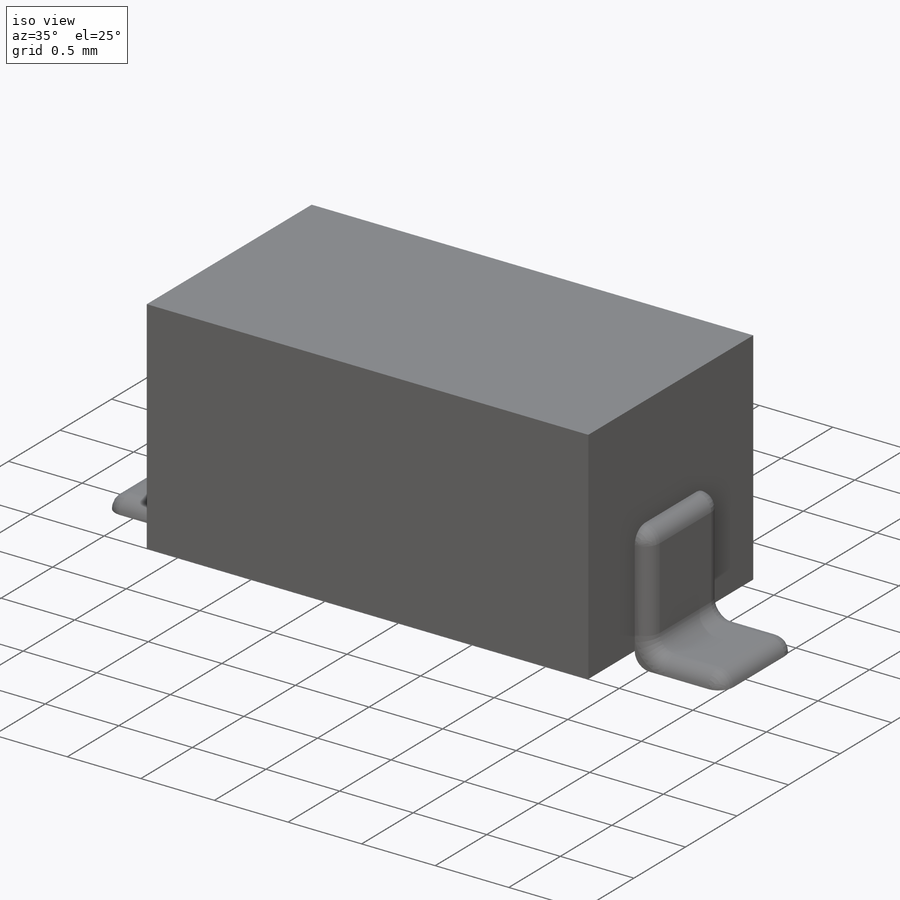
[diagram: iso view]
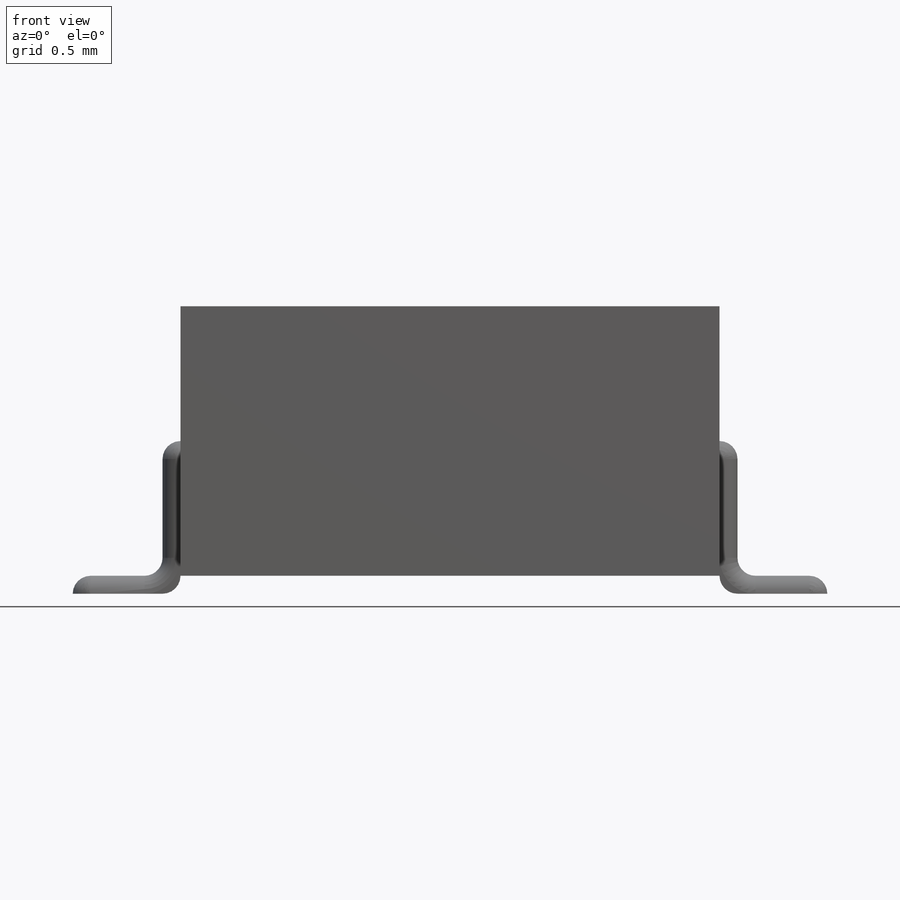
[diagram: front view]
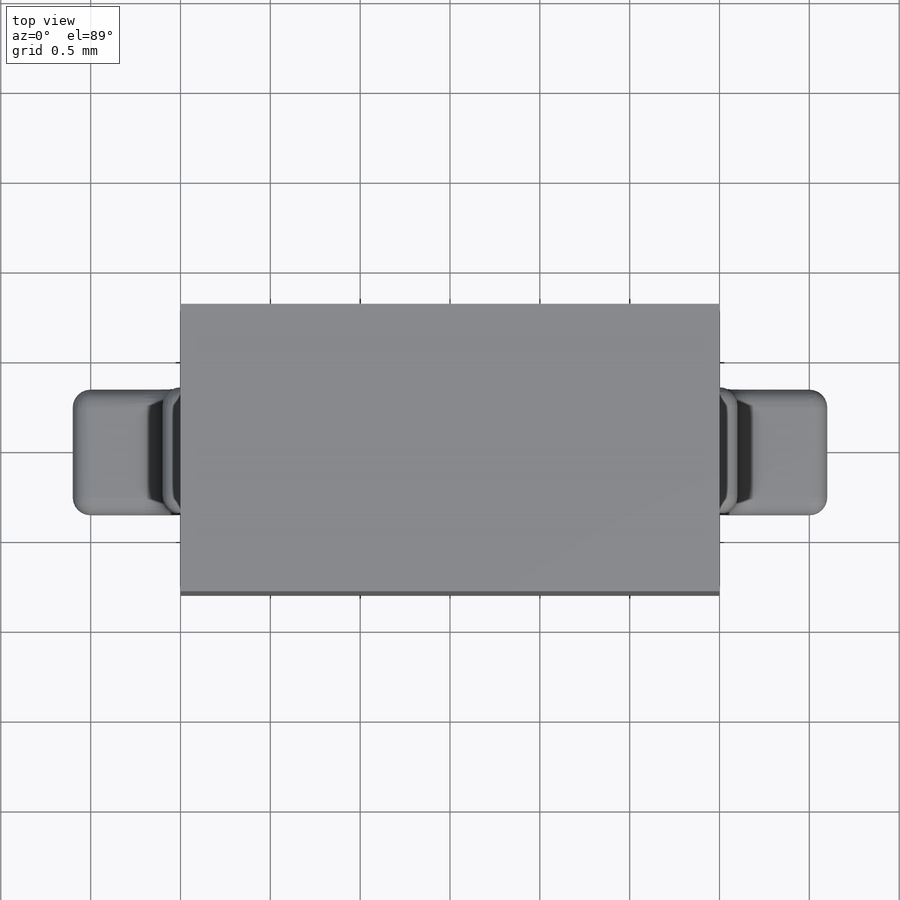
[diagram: top view]
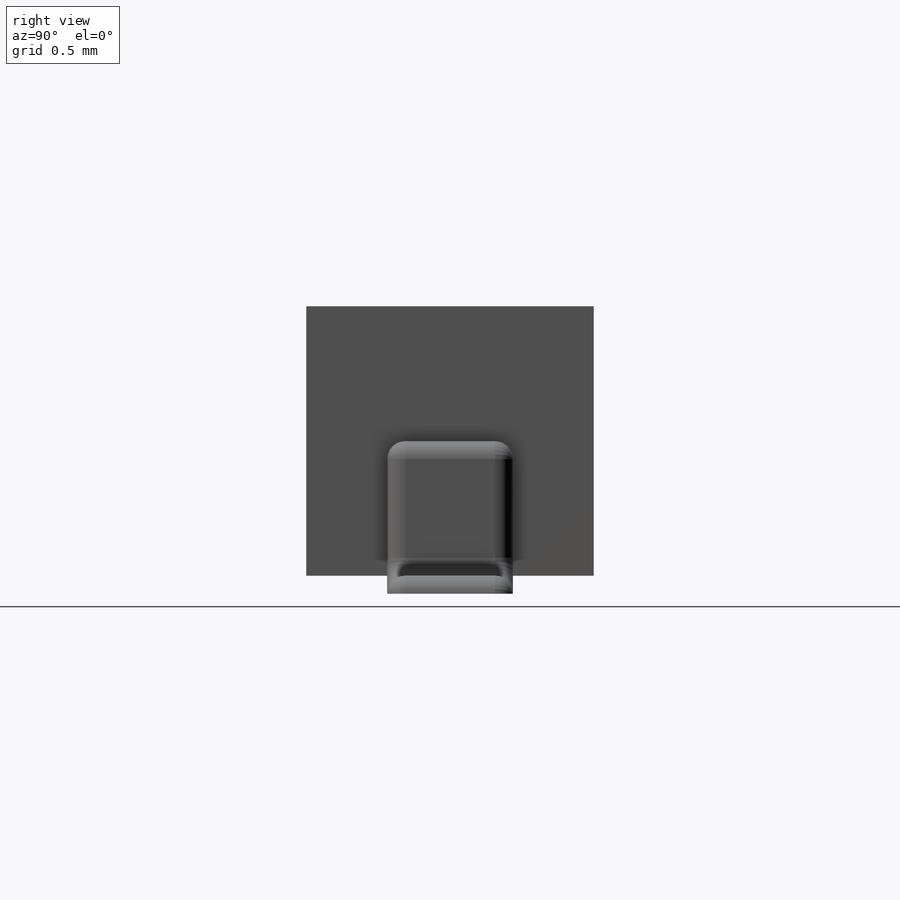
[diagram: right view]
SOLIDWORKS PART (.sldprt)
format: sldprt  version: not decoded by parser v0  size: 223,232 bytes
history: native  units: mm
features: sketch x3, extrude x3, material x1, fillet x1, mirror x1 (+12 scaffold rows collapsed)
feature tree (21):
  scaffold x12  (default folders/planes/origin — collapsed)
  material  "Material <not specified>"
  sketch  "Sketch1"  dims[D1=1.6mm D2=3.0mm]
  extrude  "Boss-Extrude1"  Depth=1.5mm
  sketch  "Sketch2"  dims[D1=0.85mm D2=0.7mm D3=0.35mm]
  extrude  "Boss-Extrude2"  Depth=0.1mm
  sketch  "Sketch5"  dims[D1=0.1mm]
  extrude  "Boss-Extrude4"  Depth=0.5mm
  fillet  "Fillet4"  Radius=0.1mm
  mirror  "Mirror1"
decode coverage: 7 of 8 modeling features carry decoded parameters
note: suppression state not decoded; provenance and decode notes live in map.json
